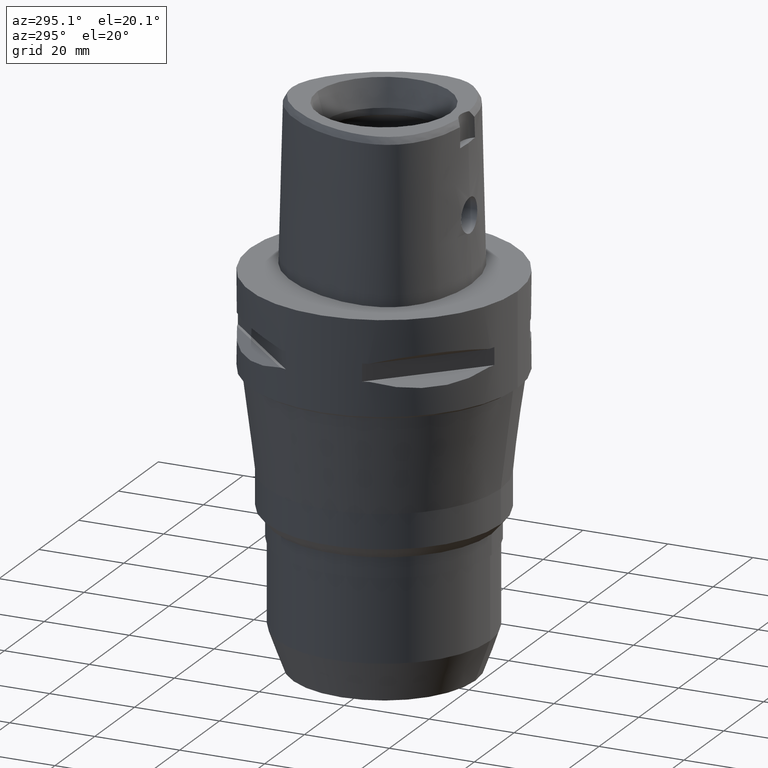
[diagram: clean part render]
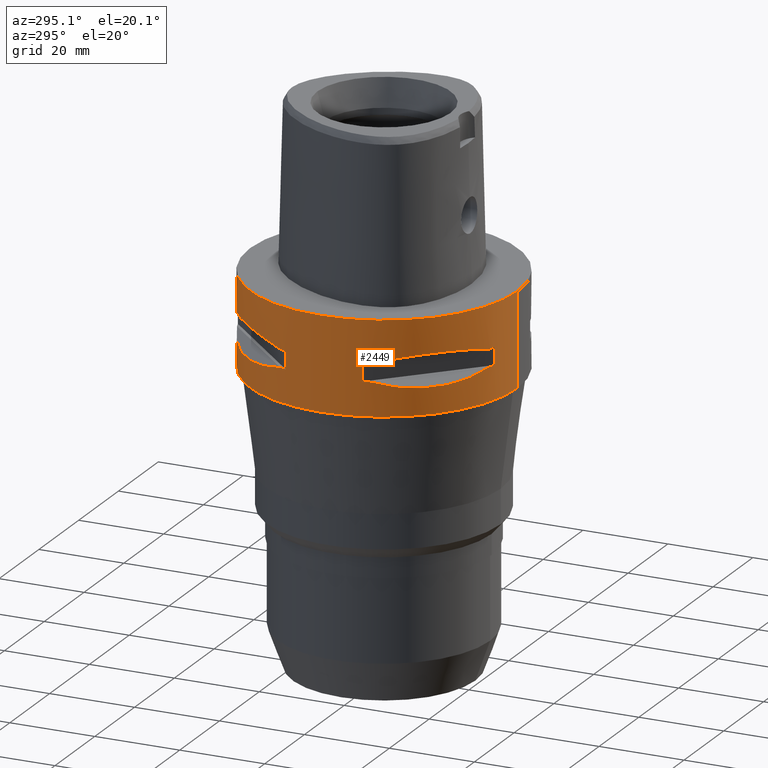
[diagram: same view with one face highlighted and labeled with its STEP entity id]
A machine part, auxiliary view. The second image highlights one B-rep face of the part: STEP entity #2449.
In plain terms, the highlighted cylindrical surface (partial cylindrical patch) has radius 31.5 mm, axis along (0, 0, -1).
Its self-contained STEP definition (entity closure, byte-faithful):
#292=CARTESIAN_POINT('',(0.E0,1.279755905109E-14,0.E0));
#293=DIRECTION('',(0.E0,0.E0,-1.E0));
#294=DIRECTION('',(0.E0,-1.E0,0.E0));
#295=AXIS2_PLACEMENT_3D('',#292,#293,#294);
#394=DIRECTION('',(0.E0,0.E0,-1.E0));
#395=VECTOR('',#394,2.2E1);
#396=CARTESIAN_POINT('',(0.E0,-3.15E1,0.E0));
#397=LINE('',#396,#395);
#401=DIRECTION('',(0.E0,0.E0,-1.E0));
#402=VECTOR('',#401,4.1E0);
#403=CARTESIAN_POINT('',(-8.981198972017E0,3.019251670572E1,-9.95E0));
#404=LINE('',#403,#402);
#408=CARTESIAN_POINT('',(-1.044775724750E1,2.971690375018E1,-1.405E1));
#409=CARTESIAN_POINT('',(-1.282388988809E1,2.888151197365E1,-1.467900482380E1));
#410=CARTESIAN_POINT('',(-1.711282138769E1,2.674739463903E1,-1.555870402293E1));
#411=CARTESIAN_POINT('',(-2.244574140438E1,2.244574140438E1,-1.597971692371E1));
#412=CARTESIAN_POINT('',(-2.674739463903E1,1.711282138769E1,-1.555870402293E1));
#413=CARTESIAN_POINT('',(-2.888151197365E1,1.282388988809E1,-1.467900482380E1));
#414=CARTESIAN_POINT('',(-2.971690375018E1,1.044775724750E1,-1.405E1));
#419=DIRECTION('',(0.E0,0.E0,1.E0));
#420=VECTOR('',#419,4.1E0);
#421=CARTESIAN_POINT('',(-3.019251670572E1,8.981198972017E0,-1.405E1));
#422=LINE('',#421,#420);
#426=DIRECTION('',(0.E0,0.E0,-1.E0));
#427=VECTOR('',#426,4.1E0);
#428=CARTESIAN_POINT('',(-3.019251670572E1,-8.981198972017E0,-9.95E0));
#429=LINE('',#428,#427);
#433=CARTESIAN_POINT('',(-2.971690375018E1,-1.044775724750E1,-1.405E1));
#434=CARTESIAN_POINT('',(-2.888151197365E1,-1.282388988809E1,
-1.467900482380E1));
#435=CARTESIAN_POINT('',(-2.674739463903E1,-1.711282138769E1,
-1.555870402293E1));
#436=CARTESIAN_POINT('',(-2.244574140438E1,-2.244574140438E1,
-1.597971692371E1));
#437=CARTESIAN_POINT('',(-1.711282138769E1,-2.674739463903E1,
-1.555870402293E1));
#438=CARTESIAN_POINT('',(-1.282388988809E1,-2.888151197365E1,
-1.467900482380E1));
#439=CARTESIAN_POINT('',(-1.044775724750E1,-2.971690375018E1,-1.405E1));
#444=DIRECTION('',(0.E0,0.E0,1.E0));
#445=VECTOR('',#444,4.1E0);
#446=CARTESIAN_POINT('',(-8.981198972017E0,-3.019251670572E1,-1.405E1));
#447=LINE('',#446,#445);
#451=DIRECTION('',(0.E0,0.E0,-1.E0));
#452=VECTOR('',#451,2.2E1);
#453=CARTESIAN_POINT('',(0.E0,3.15E1,0.E0));
#454=LINE('',#453,#452);
#516=CARTESIAN_POINT('',(0.E0,1.279755905109E-14,-2.2E1));
#517=DIRECTION('',(0.E0,0.E0,1.E0));
#518=DIRECTION('',(0.E0,1.E0,0.E0));
#519=AXIS2_PLACEMENT_3D('',#516,#517,#518);
#1392=CARTESIAN_POINT('',(-1.044775724750E1,2.971690375018E1,
-9.950000000002E0));
#1393=CARTESIAN_POINT('',(-1.282388988809E1,2.888151197365E1,
-9.320995176201E0));
#1394=CARTESIAN_POINT('',(-1.711282138769E1,2.674739463903E1,
-8.441295977077E0));
#1395=CARTESIAN_POINT('',(-2.244574140438E1,2.244574140438E1,
-8.020283076297E0));
#1396=CARTESIAN_POINT('',(-2.674739463903E1,1.711282138769E1,
-8.441295977077E0));
#1397=CARTESIAN_POINT('',(-2.888151197365E1,1.282388988809E1,
-9.320995176201E0));
#1398=CARTESIAN_POINT('',(-2.971690375018E1,1.044775724750E1,
-9.950000000002E0));
#1403=CARTESIAN_POINT('',(0.E0,1.279755905109E-14,-9.95E0));
#1404=DIRECTION('',(0.E0,0.E0,1.E0));
#1405=DIRECTION('',(-9.433937698469E-1,3.316748332541E-1,0.E0));
#1406=AXIS2_PLACEMENT_3D('',#1403,#1404,#1405);
#1411=CARTESIAN_POINT('',(0.E0,1.279755905109E-14,-9.95E0));
#1412=DIRECTION('',(0.E0,0.E0,1.E0));
#1413=DIRECTION('',(-2.851174276832E-1,9.584925938323E-1,0.E0));
#1414=AXIS2_PLACEMENT_3D('',#1411,#1412,#1413);
#1433=CARTESIAN_POINT('',(0.E0,1.279755905109E-14,-1.405E1));
#1434=DIRECTION('',(0.E0,0.E0,-1.E0));
#1435=DIRECTION('',(-9.584925938323E-1,2.851174276832E-1,0.E0));
#1436=AXIS2_PLACEMENT_3D('',#1433,#1434,#1435);
#1441=CARTESIAN_POINT('',(0.E0,1.279755905109E-14,-1.405E1));
#1442=DIRECTION('',(0.E0,0.E0,-1.E0));
#1443=DIRECTION('',(-3.316748332541E-1,9.433937698469E-1,0.E0));
#1444=AXIS2_PLACEMENT_3D('',#1441,#1442,#1443);
#1463=CARTESIAN_POINT('',(-2.971690375018E1,-1.044775724750E1,
-9.950000000002E0));
#1464=CARTESIAN_POINT('',(-2.888151197365E1,-1.282388988809E1,
-9.320995176201E0));
#1465=CARTESIAN_POINT('',(-2.674739463903E1,-1.711282138769E1,
-8.441295977077E0));
#1466=CARTESIAN_POINT('',(-2.244574140438E1,-2.244574140438E1,
-8.020283076297E0));
#1467=CARTESIAN_POINT('',(-1.711282138769E1,-2.674739463903E1,
-8.441295977077E0));
#1468=CARTESIAN_POINT('',(-1.282388988809E1,-2.888151197365E1,
-9.320995176201E0));
#1469=CARTESIAN_POINT('',(-1.044775724750E1,-2.971690375018E1,
-9.950000000002E0));
#1474=CARTESIAN_POINT('',(0.E0,1.279755905109E-14,-9.95E0));
#1475=DIRECTION('',(0.E0,0.E0,1.E0));
#1476=DIRECTION('',(-3.316748332541E-1,-9.433937698469E-1,0.E0));
#1477=AXIS2_PLACEMENT_3D('',#1474,#1475,#1476);
#1482=CARTESIAN_POINT('',(0.E0,1.279755905109E-14,-9.95E0));
#1483=DIRECTION('',(0.E0,0.E0,1.E0));
#1484=DIRECTION('',(-9.584925938323E-1,-2.851174276832E-1,0.E0));
#1485=AXIS2_PLACEMENT_3D('',#1482,#1483,#1484);
#1504=CARTESIAN_POINT('',(0.E0,1.279755905109E-14,-1.405E1));
#1505=DIRECTION('',(0.E0,0.E0,-1.E0));
#1506=DIRECTION('',(-2.851174276832E-1,-9.584925938323E-1,0.E0));
#1507=AXIS2_PLACEMENT_3D('',#1504,#1505,#1506);
#1512=CARTESIAN_POINT('',(0.E0,1.279755905109E-14,-1.405E1));
#1513=DIRECTION('',(0.E0,0.E0,-1.E0));
#1514=DIRECTION('',(-9.433937698469E-1,-3.316748332541E-1,0.E0));
#1515=AXIS2_PLACEMENT_3D('',#1512,#1513,#1514);
#1560=CARTESIAN_POINT('',(0.E0,-3.15E1,0.E0));
#1561=CARTESIAN_POINT('',(0.E0,3.15E1,0.E0));
#1562=VERTEX_POINT('',#1560);
#1563=VERTEX_POINT('',#1561);
#1564=CARTESIAN_POINT('',(0.E0,3.15E1,-2.2E1));
#1565=VERTEX_POINT('',#1564);
#1566=CARTESIAN_POINT('',(0.E0,-3.15E1,-2.2E1));
#1567=VERTEX_POINT('',#1566);
#1568=VERTEX_POINT('',#1392);
#1569=VERTEX_POINT('',#1398);
#1570=CARTESIAN_POINT('',(-8.981198972020E0,3.019251670572E1,-9.95E0));
#1571=VERTEX_POINT('',#1570);
#1572=CARTESIAN_POINT('',(-8.981198972017E0,3.019251670572E1,-1.405E1));
#1573=VERTEX_POINT('',#1572);
#1574=CARTESIAN_POINT('',(-1.044775724750E1,2.971690375018E1,-1.405E1));
#1575=VERTEX_POINT('',#1574);
#1576=VERTEX_POINT('',#414);
#1577=CARTESIAN_POINT('',(-3.019251670572E1,8.981198972020E0,-1.405E1));
#1578=VERTEX_POINT('',#1577);
#1579=CARTESIAN_POINT('',(-3.019251670572E1,8.981198972017E0,-9.95E0));
#1580=VERTEX_POINT('',#1579);
#1581=VERTEX_POINT('',#1463);
#1582=VERTEX_POINT('',#1469);
#1583=CARTESIAN_POINT('',(-3.019251670572E1,-8.981198972020E0,-9.95E0));
#1584=VERTEX_POINT('',#1583);
#1585=CARTESIAN_POINT('',(-3.019251670572E1,-8.981198972017E0,-1.405E1));
#1586=VERTEX_POINT('',#1585);
#1587=CARTESIAN_POINT('',(-2.971690375018E1,-1.044775724750E1,-1.405E1));
#1588=VERTEX_POINT('',#1587);
#1589=VERTEX_POINT('',#439);
#1590=CARTESIAN_POINT('',(-8.981198972020E0,-3.019251670572E1,-1.405E1));
#1591=VERTEX_POINT('',#1590);
#1592=CARTESIAN_POINT('',(-8.981198972017E0,-3.019251670572E1,-9.95E0));
#1593=VERTEX_POINT('',#1592);
#2399=CARTESIAN_POINT('',(0.E0,1.279755905109E-14,4.5E0));
#2400=DIRECTION('',(0.E0,0.E0,-1.E0));
#2401=DIRECTION('',(0.E0,-1.E0,0.E0));
#2402=AXIS2_PLACEMENT_3D('',#2399,#2400,#2401);
#2403=CYLINDRICAL_SURFACE('',#2402,3.15E1);
#2405=ORIENTED_EDGE('',*,*,#2404,.F.);
#2406=ORIENTED_EDGE('',*,*,#2387,.F.);
#2408=ORIENTED_EDGE('',*,*,#2407,.T.);
#2410=ORIENTED_EDGE('',*,*,#2409,.F.);
#2411=EDGE_LOOP('',(#2405,#2406,#2408,#2410));
#2412=FACE_OUTER_BOUND('',#2411,.F.);
#2414=ORIENTED_EDGE('',*,*,#2413,.F.);
#2416=ORIENTED_EDGE('',*,*,#2415,.F.);
#2418=ORIENTED_EDGE('',*,*,#2417,.T.);
#2420=ORIENTED_EDGE('',*,*,#2419,.F.);
#2422=ORIENTED_EDGE('',*,*,#2421,.T.);
#2424=ORIENTED_EDGE('',*,*,#2423,.F.);
#2426=ORIENTED_EDGE('',*,*,#2425,.T.);
#2428=ORIENTED_EDGE('',*,*,#2427,.F.);
#2429=EDGE_LOOP('',(#2414,#2416,#2418,#2420,#2422,#2424,#2426,#2428));
#2430=FACE_BOUND('',#2429,.F.);
#2432=ORIENTED_EDGE('',*,*,#2431,.F.);
#2434=ORIENTED_EDGE('',*,*,#2433,.F.);
#2436=ORIENTED_EDGE('',*,*,#2435,.T.);
#2438=ORIENTED_EDGE('',*,*,#2437,.F.);
#2440=ORIENTED_EDGE('',*,*,#2439,.T.);
#2442=ORIENTED_EDGE('',*,*,#2441,.F.);
#2444=ORIENTED_EDGE('',*,*,#2443,.T.);
#2446=ORIENTED_EDGE('',*,*,#2445,.F.);
#2447=EDGE_LOOP('',(#2432,#2434,#2436,#2438,#2440,#2442,#2444,#2446));
#2448=FACE_BOUND('',#2447,.F.);
#296=CIRCLE('',#295,3.15E1);
#415=B_SPLINE_CURVE_WITH_KNOTS('',3,(#408,#409,#410,#411,#412,#413,#414),
.UNSPECIFIED.,.F.,.F.,(4,1,1,1,4),(0.E0,2.5E-1,5.E-1,7.5E-1,1.E0),
.UNSPECIFIED.);
#440=B_SPLINE_CURVE_WITH_KNOTS('',3,(#433,#434,#435,#436,#437,#438,#439),
.UNSPECIFIED.,.F.,.F.,(4,1,1,1,4),(0.E0,2.5E-1,5.E-1,7.5E-1,1.E0),
.UNSPECIFIED.);
#520=CIRCLE('',#519,3.15E1);
#1399=B_SPLINE_CURVE_WITH_KNOTS('',3,(#1392,#1393,#1394,#1395,#1396,#1397,
#1398),.UNSPECIFIED.,.F.,.F.,(4,1,1,1,4),(0.E0,2.5E-1,5.E-1,7.5E-1,1.E0),
.UNSPECIFIED.);
#1407=CIRCLE('',#1406,3.15E1);
#1415=CIRCLE('',#1414,3.15E1);
#1437=CIRCLE('',#1436,3.15E1);
#1445=CIRCLE('',#1444,3.15E1);
#1470=B_SPLINE_CURVE_WITH_KNOTS('',3,(#1463,#1464,#1465,#1466,#1467,#1468,
#1469),.UNSPECIFIED.,.F.,.F.,(4,1,1,1,4),(0.E0,2.5E-1,5.E-1,7.5E-1,1.E0),
.UNSPECIFIED.);
#1478=CIRCLE('',#1477,3.15E1);
#1486=CIRCLE('',#1485,3.15E1);
#1508=CIRCLE('',#1507,3.15E1);
#1516=CIRCLE('',#1515,3.15E1);
#2387=EDGE_CURVE('',#1562,#1563,#296,.T.);
#2404=EDGE_CURVE('',#1563,#1565,#454,.T.);
#2407=EDGE_CURVE('',#1562,#1567,#397,.T.);
#2409=EDGE_CURVE('',#1565,#1567,#520,.T.);
#2413=EDGE_CURVE('',#1568,#1569,#1399,.T.);
#2415=EDGE_CURVE('',#1571,#1568,#1415,.T.);
#2417=EDGE_CURVE('',#1571,#1573,#404,.T.);
#2419=EDGE_CURVE('',#1575,#1573,#1445,.T.);
#2421=EDGE_CURVE('',#1575,#1576,#415,.T.);
#2423=EDGE_CURVE('',#1578,#1576,#1437,.T.);
#2425=EDGE_CURVE('',#1578,#1580,#422,.T.);
#2427=EDGE_CURVE('',#1569,#1580,#1407,.T.);
#2431=EDGE_CURVE('',#1581,#1582,#1470,.T.);
#2433=EDGE_CURVE('',#1584,#1581,#1486,.T.);
#2435=EDGE_CURVE('',#1584,#1586,#429,.T.);
#2437=EDGE_CURVE('',#1588,#1586,#1516,.T.);
#2439=EDGE_CURVE('',#1588,#1589,#440,.T.);
#2441=EDGE_CURVE('',#1591,#1589,#1508,.T.);
#2443=EDGE_CURVE('',#1591,#1593,#447,.T.);
#2445=EDGE_CURVE('',#1582,#1593,#1478,.T.);
#2449=ADVANCED_FACE('',(#2412,#2430,#2448),#2403,.T.);